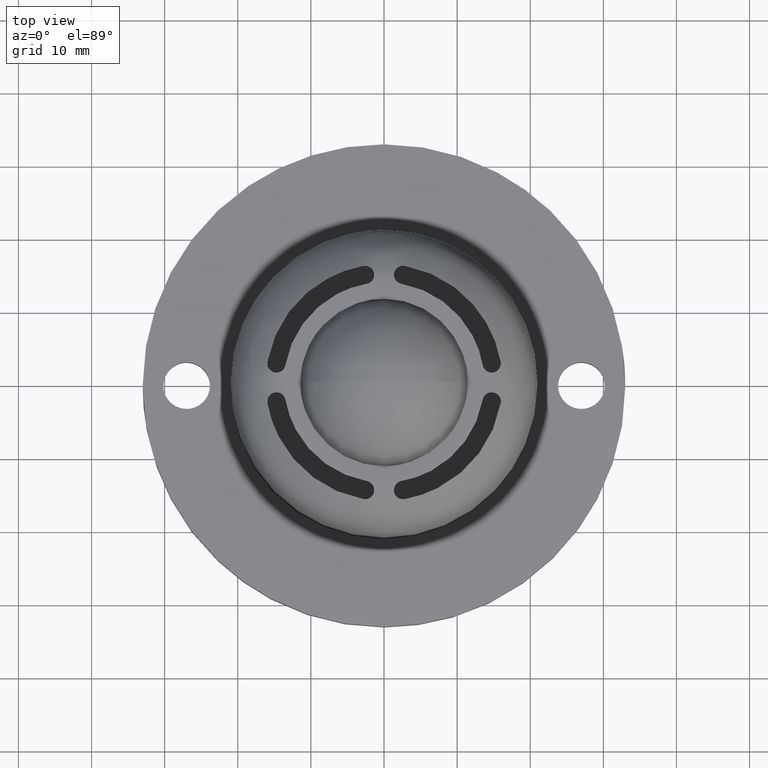
[diagram: clean part render]
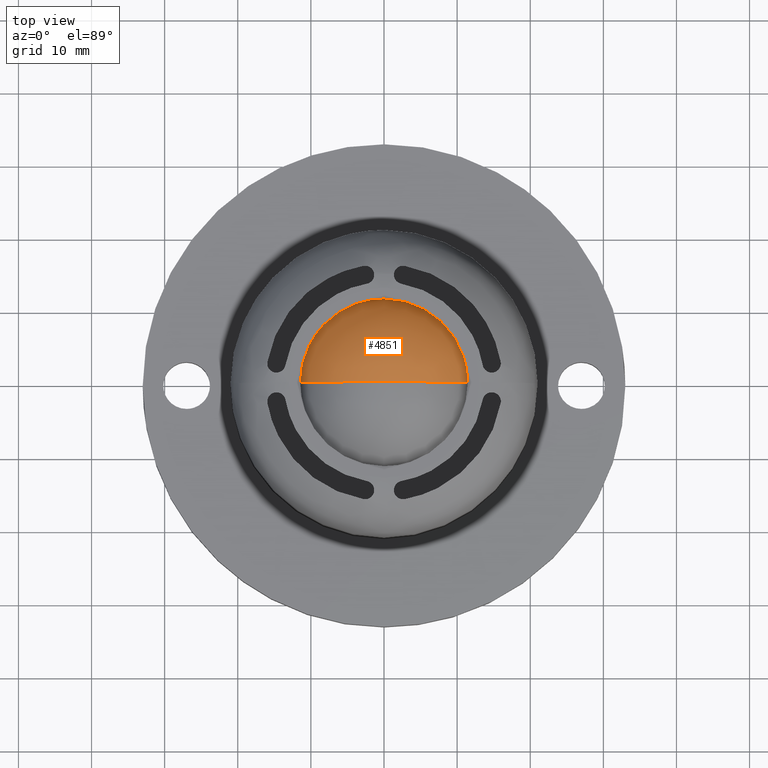
[diagram: same view with one face highlighted and labeled with its STEP entity id]
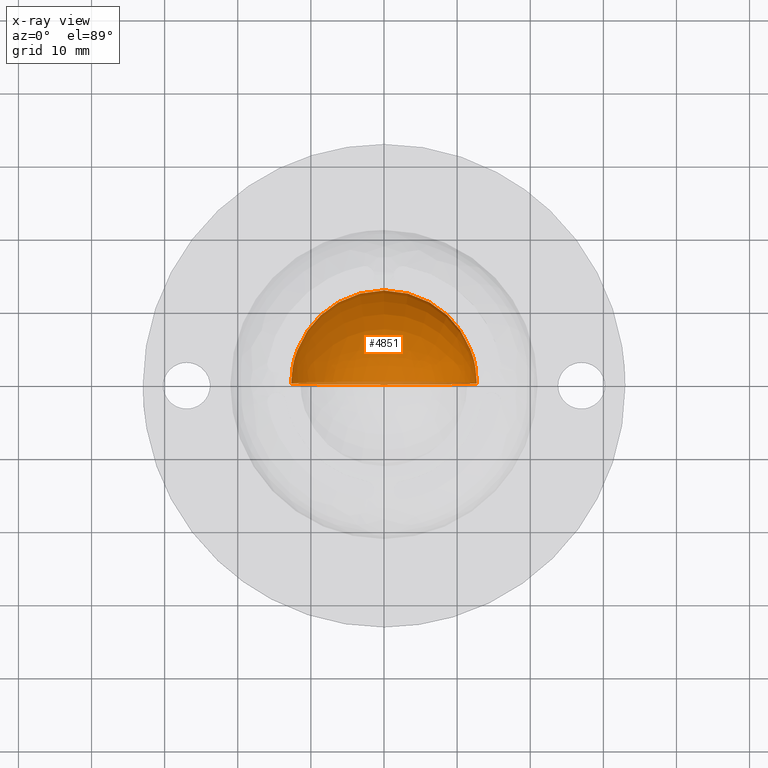
[diagram: x-ray of the same camera — body ghosted, the highlighted face saturated]
A machine part, top view. The second image highlights one B-rep face of the part: STEP entity #4851.
The next image is the same camera in x-ray: the body ghosted, the highlighted face saturated — about 3% of this face is hidden behind the body in this view.
In plain terms, the highlighted face is a freeform B-spline surface patch.
Its self-contained STEP definition (entity closure, byte-faithful):
#4724=CARTESIAN_POINT('',(-12.699999999999980,0.0,23.299999282108320));
#4725=VERTEX_POINT('',#4724);
#4726=CARTESIAN_POINT('',(0.0,0.0,10.600000000000000));
#4727=VERTEX_POINT('',#4726);
#4728=CARTESIAN_POINT('',(-12.699999999999980,0.0,23.299999282108320));
#4729=CARTESIAN_POINT('',(-12.700034481201561,0.0,22.676595330244950));
#4730=CARTESIAN_POINT('',(-12.613732425430641,0.0,21.507722409329340));
#4731=CARTESIAN_POINT('',(-12.176378007906120,0.0,19.471795184817719));
#4732=CARTESIAN_POINT('',(-11.335690374375361,0.0,17.388203701814842));
#4733=CARTESIAN_POINT('',(-10.129452339808459,0.0,15.558915668669030));
#4734=CARTESIAN_POINT('',(-8.945225827543824,0.0,14.244334648813860));
#4735=CARTESIAN_POINT('',(-7.713924196594896,0.0,13.162231222579120));
#4736=CARTESIAN_POINT('',(-6.389867240144453,0.0,12.283410164436440));
#4737=CARTESIAN_POINT('',(-4.616038533728487,0.0,11.410782197019421));
#4738=CARTESIAN_POINT('',(-2.545572975273930,0.0,10.768852753906030));
#4739=CARTESIAN_POINT('',(-0.831211739977680,0.0,10.599918028385121));
#4740=CARTESIAN_POINT('',(0.0,0.0,10.600000000000000));
#4741=B_SPLINE_CURVE_WITH_KNOTS('',3,(#4728,#4729,#4730,#4731,#4732,#4733,#4734,#4735,#4736,#4737,#4738,#4739,#4740),.UNSPECIFIED.,.F.,.U.,(4,1,1,1,1,1,1,1,1,1,4),(0.000000055910295,1.870209198817367,3.506680772579514,6.234115520025071,8.571922079811820,10.052464061580251,11.533074135377261,13.481246453586770,14.806004907575931,17.455512121838979,19.949144240049488),.UNSPECIFIED.);
#4742=EDGE_CURVE('',#4725,#4727,#4741,.T.);
#4744=CARTESIAN_POINT('',(12.699999999999980,0.0,23.299999282108320));
#4745=VERTEX_POINT('',#4744);
#4746=CARTESIAN_POINT('',(12.699999999999980,0.0,23.299999282108320));
#4747=CARTESIAN_POINT('',(12.700034481201561,0.0,22.676595330244950));
#4748=CARTESIAN_POINT('',(12.613732425430641,0.0,21.507722409329340));
#4749=CARTESIAN_POINT('',(12.176378007906120,0.0,19.471795184817719));
#4750=CARTESIAN_POINT('',(11.335690374375361,0.0,17.388203701814842));
#4751=CARTESIAN_POINT('',(10.129452339808459,0.0,15.558915668669030));
#4752=CARTESIAN_POINT('',(8.945225827543824,0.0,14.244334648813860));
#4753=CARTESIAN_POINT('',(7.713924196594896,0.0,13.162231222579120));
#4754=CARTESIAN_POINT('',(6.389867240144453,0.0,12.283410164436440));
#4755=CARTESIAN_POINT('',(4.616038533728487,0.0,11.410782197019421));
#4756=CARTESIAN_POINT('',(2.545572975273930,0.0,10.768852753906030));
#4757=CARTESIAN_POINT('',(0.831211739977680,0.0,10.599918028385121));
#4758=CARTESIAN_POINT('',(0.0,0.0,10.600000000000000));
#4759=B_SPLINE_CURVE_WITH_KNOTS('',3,(#4746,#4747,#4748,#4749,#4750,#4751,#4752,#4753,#4754,#4755,#4756,#4757,#4758),.UNSPECIFIED.,.F.,.U.,(4,1,1,1,1,1,1,1,1,1,4),(0.000000055910295,1.870209198817367,3.506680772579514,6.234115520025071,8.571922079811820,10.052464061580251,11.533074135377261,13.481246453586770,14.806004907575931,17.455512121838979,19.949144240049488),.UNSPECIFIED.);
#4760=EDGE_CURVE('',#4745,#4727,#4759,.T.);
#4762=CARTESIAN_POINT('',(0.0,0.0,36.000000000000007));
#4763=VERTEX_POINT('',#4762);
#4764=CARTESIAN_POINT('',(0.0,0.0,36.000000000000007));
#4765=CARTESIAN_POINT('',(0.571452599135934,0.0,36.000022098869053));
#4766=CARTESIAN_POINT('',(1.740339293398224,0.0,35.920976236055317));
#4767=CARTESIAN_POINT('',(3.550281416296300,0.0,35.543658080258083));
#4768=CARTESIAN_POINT('',(5.137929562107592,0.0,34.953489174712260));
#4769=CARTESIAN_POINT('',(6.564582473094427,0.0,34.202110300604623));
#4770=CARTESIAN_POINT('',(7.749799724813852,0.0,33.399615758239193));
#4771=CARTESIAN_POINT('',(9.086036654603689,0.0,32.239874060160012));
#4772=CARTESIAN_POINT('',(10.223212212471990,0.0,30.913351625710810));
#4773=CARTESIAN_POINT('',(11.303744331604721,0.0,29.195362187040558));
#4774=CARTESIAN_POINT('',(12.075195174771689,0.0,27.425880270432540));
#4775=CARTESIAN_POINT('',(12.587812770344939,0.0,25.352029737691680));
#4776=CARTESIAN_POINT('',(12.700057746691581,0.0,24.001332330680889));
#4777=CARTESIAN_POINT('',(12.699999999999980,0.0,23.299999282108320));
#4778=B_SPLINE_CURVE_WITH_KNOTS('',3,(#4764,#4765,#4766,#4767,#4768,#4769,#4770,#4771,#4772,#4773,#4774,#4775,#4776,#4777),.UNSPECIFIED.,.F.,.U.,(4,1,1,1,1,1,1,1,1,1,1,4),(0.000000055878967,1.714358509509694,3.506680914841731,5.532774570098248,6.779604946832182,8.338125307166397,9.818738259139709,12.078563765953390,13.559184170635289,15.896981318370569,17.845153835170809,19.949145049281942),.UNSPECIFIED.);
#4779=EDGE_CURVE('',#4763,#4745,#4778,.T.);
#4781=CARTESIAN_POINT('',(0.0,0.0,36.000000000000007));
#4782=CARTESIAN_POINT('',(-0.571452599135934,0.0,36.000022098869053));
#4783=CARTESIAN_POINT('',(-1.740339293398224,0.0,35.920976236055317));
#4784=CARTESIAN_POINT('',(-3.550281416296300,0.0,35.543658080258083));
#4785=CARTESIAN_POINT('',(-5.137929562107592,0.0,34.953489174712260));
#4786=CARTESIAN_POINT('',(-6.564582473094427,0.0,34.202110300604623));
#4787=CARTESIAN_POINT('',(-7.749799724813852,0.0,33.399615758239193));
#4788=CARTESIAN_POINT('',(-9.086036654603689,0.0,32.239874060160012));
#4789=CARTESIAN_POINT('',(-10.223212212471990,0.0,30.913351625710810));
#4790=CARTESIAN_POINT('',(-11.303744331604721,0.0,29.195362187040558));
#4791=CARTESIAN_POINT('',(-12.075195174771689,0.0,27.425880270432540));
#4792=CARTESIAN_POINT('',(-12.587812770344939,0.0,25.352029737691680));
#4793=CARTESIAN_POINT('',(-12.700057746691581,0.0,24.001332330680889));
#4794=CARTESIAN_POINT('',(-12.699999999999980,0.0,23.299999282108320));
#4795=B_SPLINE_CURVE_WITH_KNOTS('',3,(#4781,#4782,#4783,#4784,#4785,#4786,#4787,#4788,#4789,#4790,#4791,#4792,#4793,#4794),.UNSPECIFIED.,.F.,.U.,(4,1,1,1,1,1,1,1,1,1,1,4),(0.000000055878967,1.714358509509694,3.506680914841731,5.532774570098248,6.779604946832182,8.338125307166397,9.818738259139709,12.078563765953390,13.559184170635289,15.896981318370569,17.845153835170809,19.949145049281942),.UNSPECIFIED.);
#4796=EDGE_CURVE('',#4763,#4725,#4795,.T.);
#4801=CARTESIAN_POINT('',(-8.324920232350575,-4.762500000000000,31.624920232350593));
#4802=CARTESIAN_POINT('',(-7.539550399109955,-3.115094339622643,33.352733865479948));
#4803=CARTESIAN_POINT('',(-3.171398183752600,-0.604761904761904,35.985592735010400));
#4804=CARTESIAN_POINT('',(3.171398183752600,-0.604761904761904,35.985592735010400));
#4805=CARTESIAN_POINT('',(7.539550399109955,-3.115094339622643,33.352733865479948));
#4806=CARTESIAN_POINT('',(8.324920232350575,-4.762500000000000,31.624920232350593));
#4807=CARTESIAN_POINT('',(-10.052733865479940,-3.115094339622643,30.839550399109957));
#4808=CARTESIAN_POINT('',(-9.514194551257800,-0.604761904761904,32.814194551257799));
#4809=CARTESIAN_POINT('',(-4.296733023148684,3.687096774193545,36.190199069446059));
#4810=CARTESIAN_POINT('',(4.296733023148684,3.687096774193545,36.190199069446059));
#4811=CARTESIAN_POINT('',(9.514194551257800,-0.604761904761904,32.814194551257799));
#4812=CARTESIAN_POINT('',(10.052733865479940,-3.115094339622643,30.839550399109957));
#4813=CARTESIAN_POINT('',(-12.685592735010401,-0.604761904761904,26.471398183752601));
#4814=CARTESIAN_POINT('',(-12.890199069446052,3.687096774193545,27.596733023148687));
#4815=CARTESIAN_POINT('',(-6.659936185880460,12.699999999999999,29.959936185880458));
#4816=CARTESIAN_POINT('',(6.659936185880460,12.699999999999999,29.959936185880458));
#4817=CARTESIAN_POINT('',(12.890199069446052,3.687096774193545,27.596733023148687));
#4818=CARTESIAN_POINT('',(12.685592735010401,-0.604761904761904,26.471398183752601));
#4819=CARTESIAN_POINT('',(-12.685592735010401,-0.604761904761904,20.128601816247404));
#4820=CARTESIAN_POINT('',(-12.890199069446052,3.687096774193545,19.003266976851314));
#4821=CARTESIAN_POINT('',(-6.659936185880460,12.699999999999999,16.640063814119539));
#4822=CARTESIAN_POINT('',(6.659936185880460,12.699999999999999,16.640063814119539));
#4823=CARTESIAN_POINT('',(12.890199069446052,3.687096774193545,19.003266976851314));
#4824=CARTESIAN_POINT('',(12.685592735010401,-0.604761904761904,20.128601816247404));
#4825=CARTESIAN_POINT('',(-10.052733865479940,-3.115094339622643,15.760449600890048));
#4826=CARTESIAN_POINT('',(-9.514194551257800,-0.604761904761904,13.785805448742199));
#4827=CARTESIAN_POINT('',(-4.296733023148684,3.687096774193545,10.409800930553949));
#4828=CARTESIAN_POINT('',(4.296733023148684,3.687096774193545,10.409800930553949));
#4829=CARTESIAN_POINT('',(9.514194551257800,-0.604761904761904,13.785805448742199));
#4830=CARTESIAN_POINT('',(10.052733865479940,-3.115094339622643,15.760449600890048));
#4831=CARTESIAN_POINT('',(-8.324920232350575,-4.762500000000000,14.975079767649424));
#4832=CARTESIAN_POINT('',(-7.539550399109955,-3.115094339622643,13.247266134520066));
#4833=CARTESIAN_POINT('',(-3.171398183752600,-0.604761904761904,10.614407264989600));
#4834=CARTESIAN_POINT('',(3.171398183752600,-0.604761904761904,10.614407264989600));
#4835=CARTESIAN_POINT('',(7.539550399109955,-3.115094339622643,13.247266134520066));
#4836=CARTESIAN_POINT('',(8.324920232350575,-4.762500000000000,14.975079767649424));
#4844=(BOUNDED_SURFACE()B_SPLINE_SURFACE(2,2,((#4801,#4807,#4813,#4819,#4825,#4831),(#4802,#4808,#4814,#4820,#4826,#4832),(#4803,#4809,#4815,#4821,#4827,#4833),(#4804,#4810,#4816,#4822,#4828,#4834),(#4805,#4811,#4817,#4823,#4829,#4835),(#4806,#4812,#4818,#4824,#4830,#4836)),.UNSPECIFIED.,.F.,.F.,.U.)B_SPLINE_SURFACE_WITH_KNOTS((3,1,1,1,3),(3,1,1,1,3),(0.0,11.709777909240371,23.419555818480742,35.129333727721111,46.839111636961483),(0.0,11.709777909240380,23.419555818480760,35.129333727721139,46.839111636961519),.UNSPECIFIED.)GEOMETRIC_REPRESENTATION_ITEM()RATIONAL_B_SPLINE_SURFACE(((3.200000000000000,2.650000000000000,2.100000000000000,2.100000000000000,2.650000000000000,3.200000000000000),(2.650000000000000,2.100000000000000,1.550000000000000,1.550000000000000,2.100000000000000,2.650000000000000),(2.100000000000000,1.550000000000000,1.0,1.0,1.550000000000000,2.100000000000000),(2.100000000000000,1.550000000000000,1.0,1.0,1.550000000000000,2.100000000000000),(2.650000000000000,2.100000000000000,1.550000000000000,1.550000000000000,2.100000000000000,2.650000000000000),(3.200000000000000,2.650000000000000,2.100000000000000,2.100000000000000,2.650000000000000,3.200000000000000)))REPRESENTATION_ITEM('')SURFACE());
#4845=ORIENTED_EDGE('',*,*,#4760,.T.);
#4846=ORIENTED_EDGE('',*,*,#4742,.F.);
#4847=ORIENTED_EDGE('',*,*,#4796,.F.);
#4848=ORIENTED_EDGE('',*,*,#4779,.T.);
#4849=EDGE_LOOP('',(#4845,#4846,#4847,#4848));
#4850=FACE_OUTER_BOUND('',#4849,.T.);
#4851=ADVANCED_FACE('',(#4850),#4844,.T.);